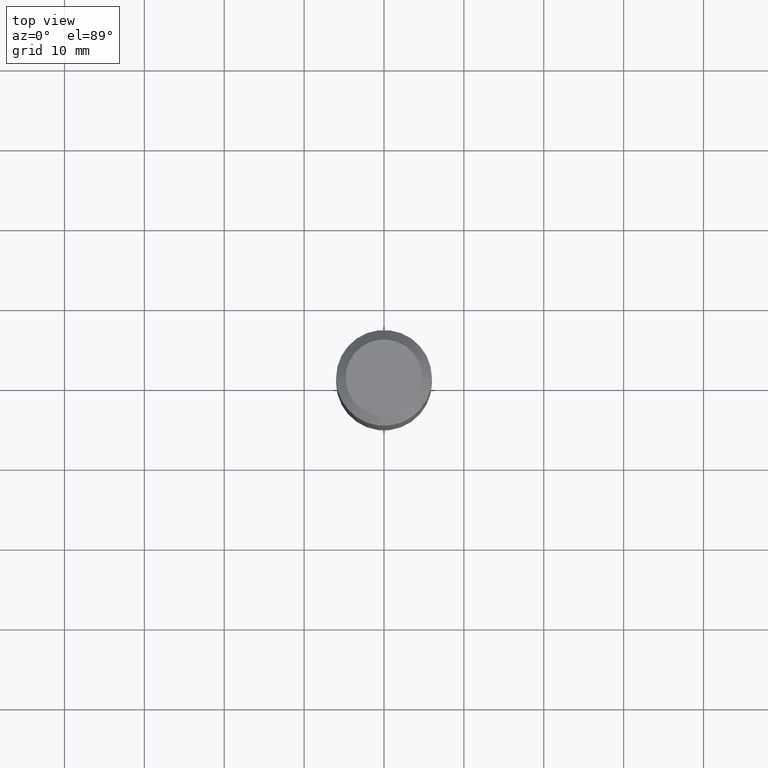
[diagram: clean part render]
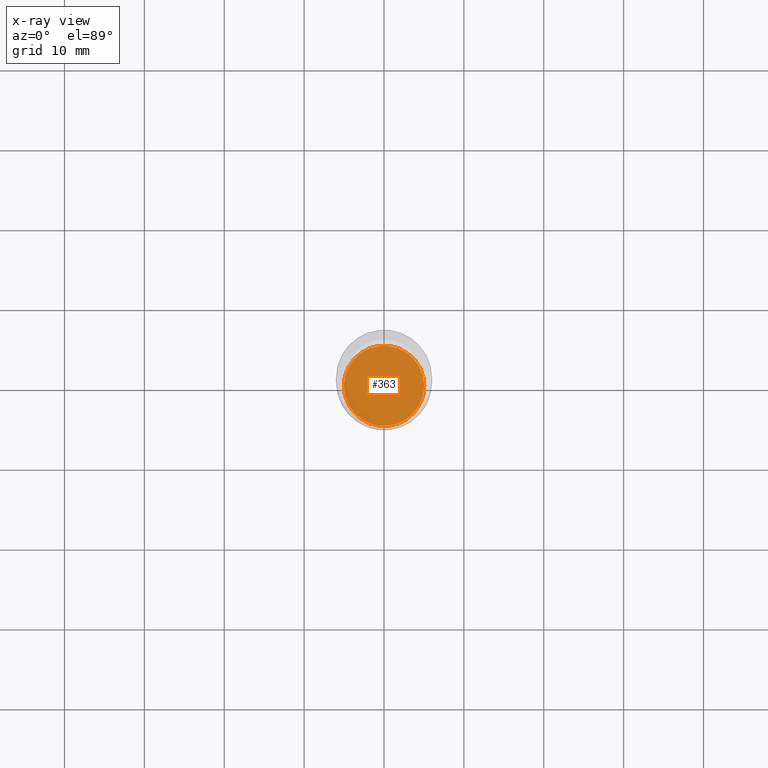
[diagram: x-ray — body ghosted, one internal face saturated and labeled with its STEP entity id]
A machine part, top view, then the same camera in x-ray: the body is ghosted and one INTERNAL B-rep face — a face not visible from any outside direction — is saturated and labeled: STEP entity #363.
In plain terms, the highlighted planar face has unit normal (-0, 0, 1).
Its self-contained STEP definition (entity closure, byte-faithful):
#8 = DIRECTION ( 'NONE',  ( 1.000000000000000000, -6.982962677686265922E-15, 4.876176775795935793E-29 ) ) ;
#19 = EDGE_LOOP ( 'NONE', ( #203, #286 ) ) ;
#53 = DIRECTION ( 'NONE',  ( -2.445468806185136597E-29, 3.491481338843145583E-15, 1.000000000000000000 ) ) ;
#75 = AXIS2_PLACEMENT_3D ( 'NONE', #246, #83, #8 ) ;
#83 = DIRECTION ( 'NONE',  ( -2.438088387897960049E-29, 3.491481338843145188E-15, 1.000000000000000000 ) ) ;
#89 = CARTESIAN_POINT ( 'NONE',  ( 5.708457834277963987E-29, -8.150164889261554205E-15, -2.334299999999999820 ) ) ;
#132 = CARTESIAN_POINT ( 'NONE',  ( 0.1983000000000000040, -9.534886388246739745E-15, -2.334299999999999820 ) ) ;
#171 = DIRECTION ( 'NONE',  ( -2.445468806185136597E-29, 3.491481338843145583E-15, 1.000000000000000000 ) ) ;
#176 = AXIS2_PLACEMENT_3D ( 'NONE', #89, #171, #288 ) ;
#177 = FACE_OUTER_BOUND ( 'NONE', #19, .T. ) ;
#203 = ORIENTED_EDGE ( 'NONE', *, *, #264, .F. ) ;
#246 = CARTESIAN_POINT ( 'NONE',  ( 5.708457834277963987E-29, -8.150164889261554205E-15, -2.334299999999999820 ) ) ;
#253 = CARTESIAN_POINT ( 'NONE',  ( 5.708457834277963987E-29, -8.150164889261554205E-15, -2.334299999999999820 ) ) ;
#257 = CARTESIAN_POINT ( 'NONE',  ( -0.1983000000000000040, -6.738509417075164110E-15, -2.334299999999999820 ) ) ;
#258 = DIRECTION ( 'NONE',  ( 1.000000000000000000, -6.982962677686265133E-15, 0.000000000000000000 ) ) ;
#261 = AXIS2_PLACEMENT_3D ( 'NONE', #253, #53, #258 ) ;
#264 = EDGE_CURVE ( 'NONE', #505, #450, #471, .T. ) ;
#286 = ORIENTED_EDGE ( 'NONE', *, *, #319, .F. ) ;
#288 = DIRECTION ( 'NONE',  ( 1.000000000000000000, -6.982962677686265133E-15, 0.000000000000000000 ) ) ;
#319 = EDGE_CURVE ( 'NONE', #450, #505, #437, .T. ) ;
#363 = ADVANCED_FACE ( 'NONE', ( #177 ), #442, .F. ) ;
#437 = CIRCLE ( 'NONE', #176, 0.1983000000000000040 ) ;
#442 = PLANE ( 'NONE',  #75 ) ;
#450 = VERTEX_POINT ( 'NONE', #257 ) ;
#471 = CIRCLE ( 'NONE', #261, 0.1983000000000000040 ) ;
#505 = VERTEX_POINT ( 'NONE', #132 ) ;